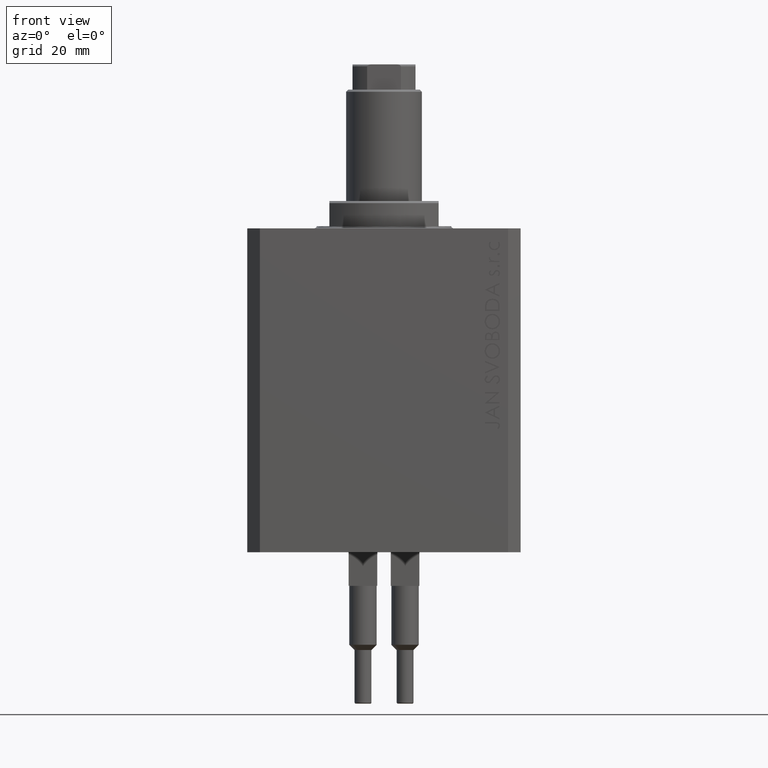
[diagram: clean part render]
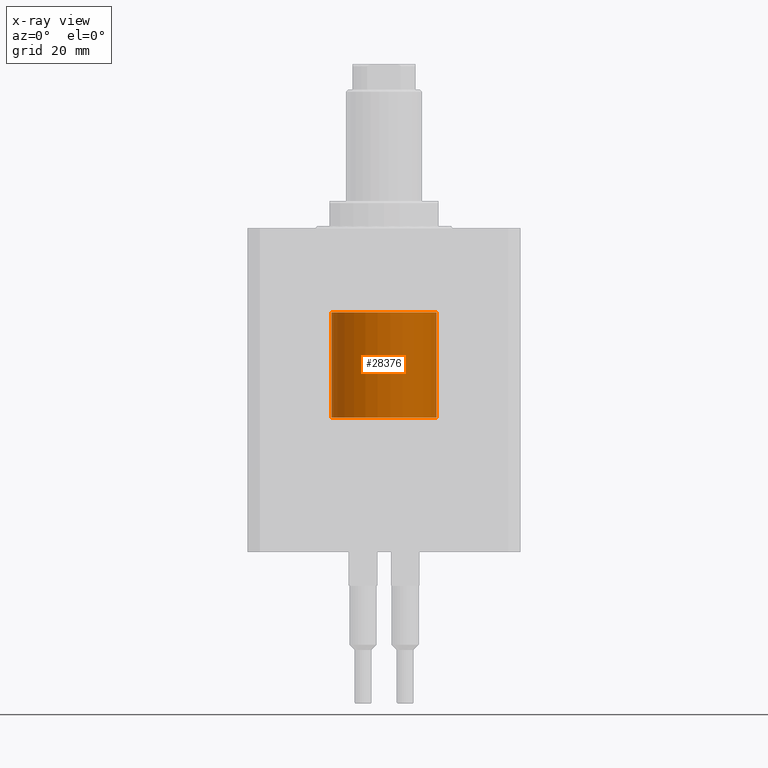
[diagram: x-ray — body ghosted, one internal face saturated and labeled with its STEP entity id]
A machine part, front view, then the same camera in x-ray: the body is ghosted and one INTERNAL B-rep face — a face not visible from any outside direction — is saturated and labeled: STEP entity #28376.
In plain terms, the highlighted cylindrical surface (partial cylindrical patch) has radius 12.5 mm, axis along (-0, -0, -1).
Its self-contained STEP definition (entity closure, byte-faithful):
#463 = VERTEX_POINT ( 'NONE', #47184 ) ;
#868 = ORIENTED_EDGE ( 'NONE', *, *, #12614, .T. ) ;
#1093 = VECTOR ( 'NONE', #46837, 1000.000000000000000 ) ;
#2179 = EDGE_LOOP ( 'NONE', ( #40486, #12989, #12768, #868 ) ) ;
#2883 = DIRECTION ( 'NONE',  ( -0.000000000000000000, -0.000000000000000000, -1.000000000000000000 ) ) ;
#3607 = CYLINDRICAL_SURFACE ( 'NONE', #41416, 12.50000000000000000 ) ;
#5617 = DIRECTION ( 'NONE',  ( 1.000000000000000000, 0.000000000000000000, 0.000000000000000000 ) ) ;
#6566 = EDGE_CURVE ( 'NONE', #463, #14387, #31384, .T. ) ;
#8302 = VECTOR ( 'NONE', #24127, 1000.000000000000000 ) ;
#9346 = CARTESIAN_POINT ( 'NONE',  ( -12.50000000000000000, 0.000000000000000000, 25.00000000000000000 ) ) ;
#10224 = LINE ( 'NONE', #47083, #1093 ) ;
#12614 = EDGE_CURVE ( 'NONE', #14387, #36955, #16681, .T. ) ;
#12768 = ORIENTED_EDGE ( 'NONE', *, *, #6566, .T. ) ;
#12989 = ORIENTED_EDGE ( 'NONE', *, *, #32699, .F. ) ;
#13780 = DIRECTION ( 'NONE',  ( 1.000000000000000000, 0.000000000000000000, 0.000000000000000000 ) ) ;
#14387 = VERTEX_POINT ( 'NONE', #17332 ) ;
#16681 = CIRCLE ( 'NONE', #37524, 12.50000000000000000 ) ;
#17332 = CARTESIAN_POINT ( 'NONE',  ( -12.50000000000000000, 0.000000000000000000, 0.000000000000000000 ) ) ;
#17671 = CARTESIAN_POINT ( 'NONE',  ( 0.000000000000000000, 0.000000000000000000, 25.00000000000000000 ) ) ;
#18236 = CIRCLE ( 'NONE', #43022, 12.50000000000000000 ) ;
#19034 = EDGE_CURVE ( 'NONE', #21709, #36955, #10224, .T. ) ;
#20153 = CARTESIAN_POINT ( 'NONE',  ( 0.000000000000000000, 0.000000000000000000, 25.00000000000000000 ) ) ;
#21709 = VERTEX_POINT ( 'NONE', #39503 ) ;
#24127 = DIRECTION ( 'NONE',  ( -0.000000000000000000, -0.000000000000000000, -1.000000000000000000 ) ) ;
#25123 = CARTESIAN_POINT ( 'NONE',  ( 12.50000000000000000, 1.530808498934191521E-15, 0.000000000000000000 ) ) ;
#28376 = ADVANCED_FACE ( 'NONE', ( #47258 ), #3607, .T. ) ;
#29285 = CARTESIAN_POINT ( 'NONE',  ( 0.000000000000000000, 0.000000000000000000, 0.000000000000000000 ) ) ;
#31384 = LINE ( 'NONE', #9346, #8302 ) ;
#32699 = EDGE_CURVE ( 'NONE', #463, #21709, #18236, .T. ) ;
#34916 = DIRECTION ( 'NONE',  ( 0.000000000000000000, 0.000000000000000000, 1.000000000000000000 ) ) ;
#36955 = VERTEX_POINT ( 'NONE', #25123 ) ;
#37524 = AXIS2_PLACEMENT_3D ( 'NONE', #29285, #40440, #13780 ) ;
#39503 = CARTESIAN_POINT ( 'NONE',  ( 12.50000000000000000, 1.530808498934191521E-15, 25.00000000000000000 ) ) ;
#40440 = DIRECTION ( 'NONE',  ( 0.000000000000000000, 0.000000000000000000, 1.000000000000000000 ) ) ;
#40486 = ORIENTED_EDGE ( 'NONE', *, *, #19034, .F. ) ;
#41416 = AXIS2_PLACEMENT_3D ( 'NONE', #17671, #2883, #47486 ) ;
#43022 = AXIS2_PLACEMENT_3D ( 'NONE', #20153, #34916, #5617 ) ;
#46837 = DIRECTION ( 'NONE',  ( -0.000000000000000000, -0.000000000000000000, -1.000000000000000000 ) ) ;
#47083 = CARTESIAN_POINT ( 'NONE',  ( 12.50000000000000000, 1.530808498934191521E-15, 25.00000000000000000 ) ) ;
#47184 = CARTESIAN_POINT ( 'NONE',  ( -12.50000000000000000, 0.000000000000000000, 25.00000000000000000 ) ) ;
#47258 = FACE_OUTER_BOUND ( 'NONE', #2179, .T. ) ;
#47486 = DIRECTION ( 'NONE',  ( -1.000000000000000000, 0.000000000000000000, 0.000000000000000000 ) ) ;